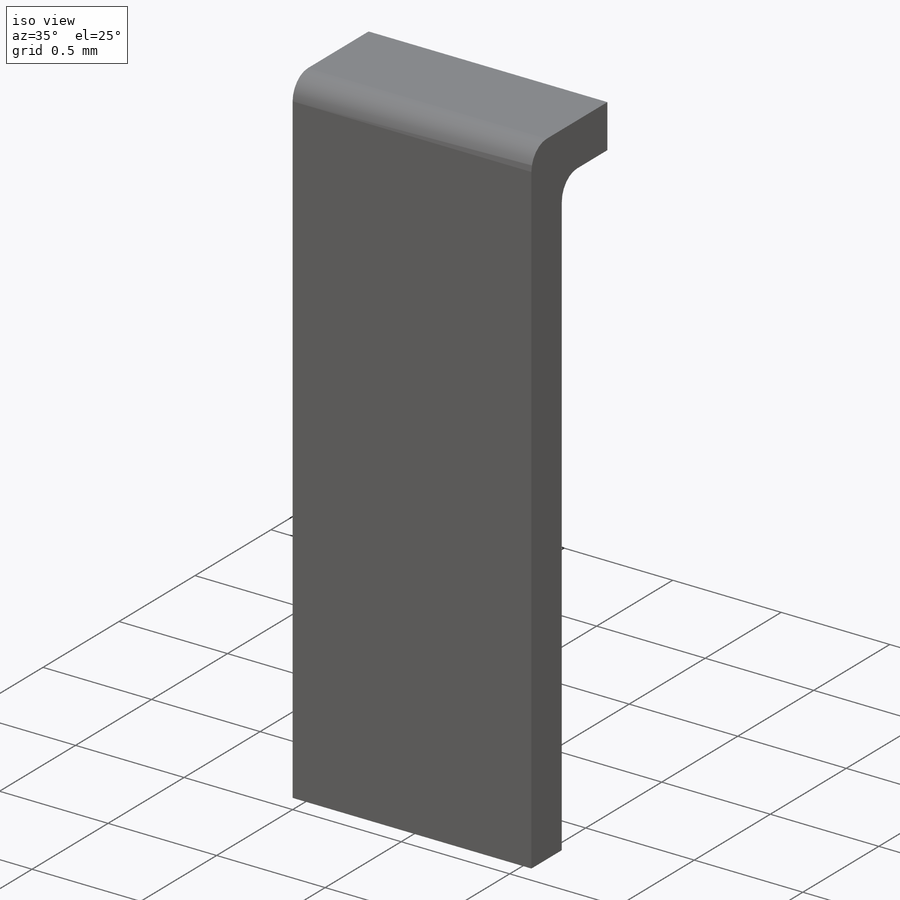
[diagram: iso view]
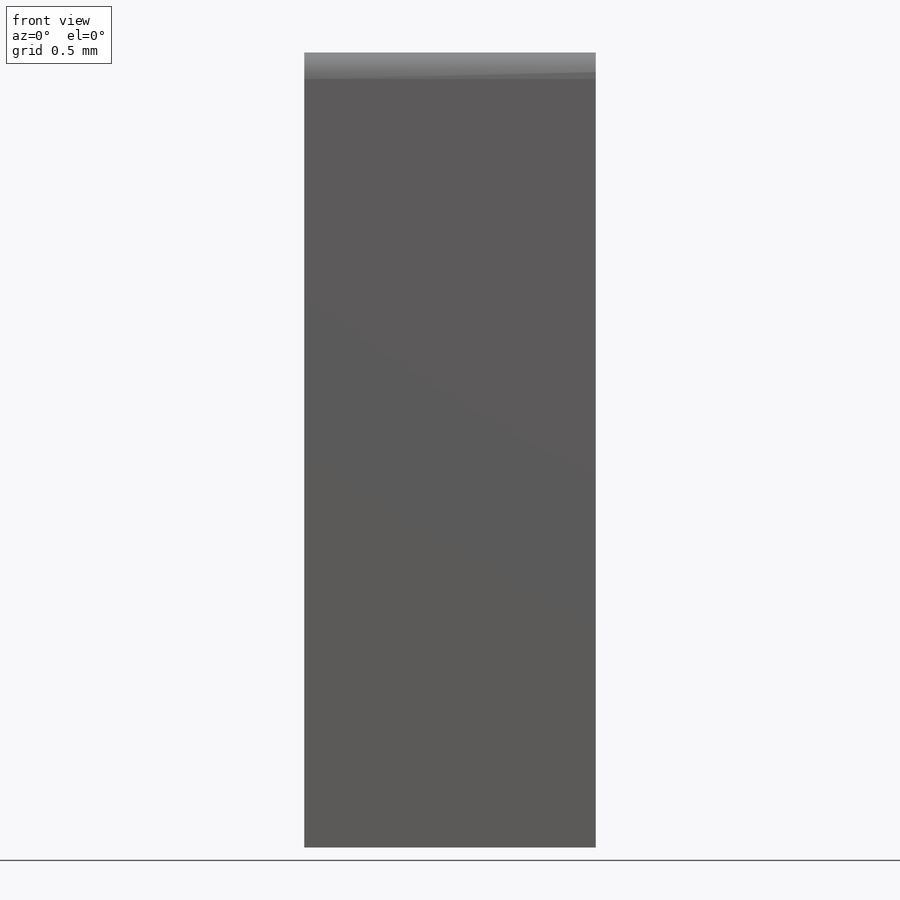
[diagram: front view]
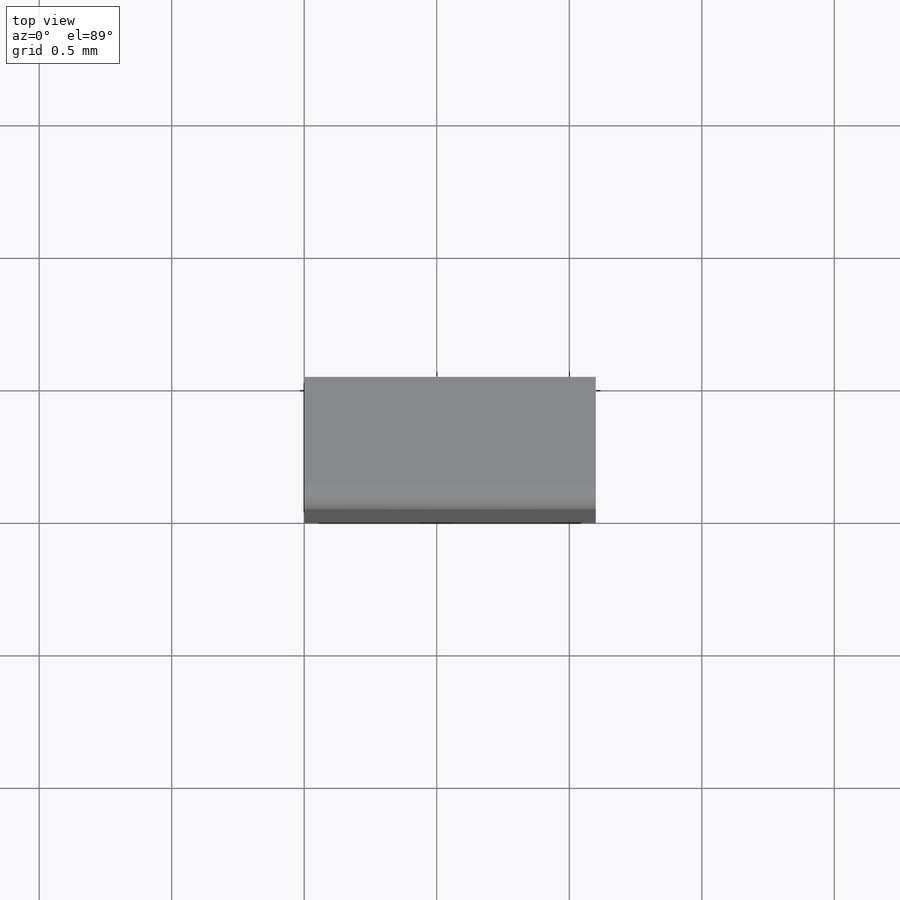
[diagram: top view]
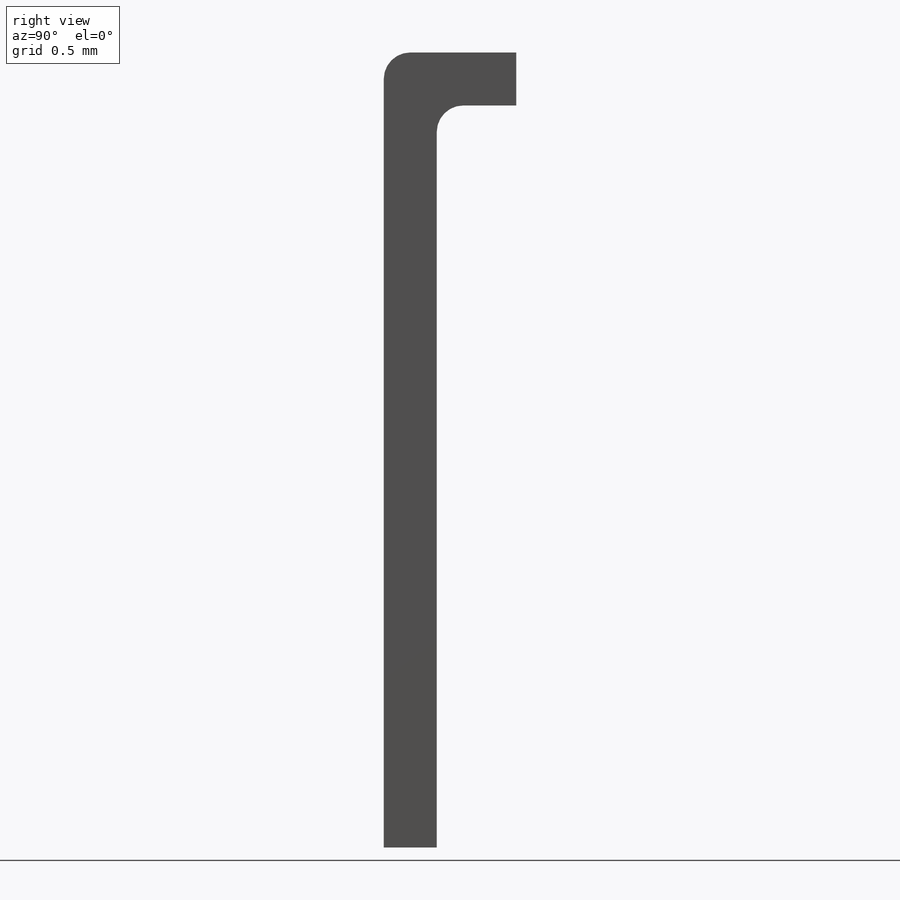
[diagram: right view]
SOLIDWORKS PART (.sldprt)
format: sldprt  version: not decoded by parser v0  size: 131,072 bytes
history: native  units: mm
features: plane x3, sketch x2, extrude x2, material x1, fillet x1 (+10 scaffold rows collapsed)
feature tree (19):
  scaffold x10  (default folders/planes/origin — collapsed)
  material  "Material <not specified>"
  plane  "Plan de face"
  plane  "Plan de dessus"
  plane  "Plan de droite"
  sketch  "Esquisse1"  dims[D1=3.0mm D2=1.1mm]
  extrude  "Boss.-Extru.1"  Depth=0.2mm
  sketch  "Esquisse2"  dims[D1=0.2mm]
  extrude  "Boss.-Extru.2"  Depth=0.3mm
  fillet  "Congé1"  Radius=0.1mm
decode coverage: 5 of 5 modeling features carry decoded parameters
note: suppression state not decoded; provenance and decode notes live in map.json
